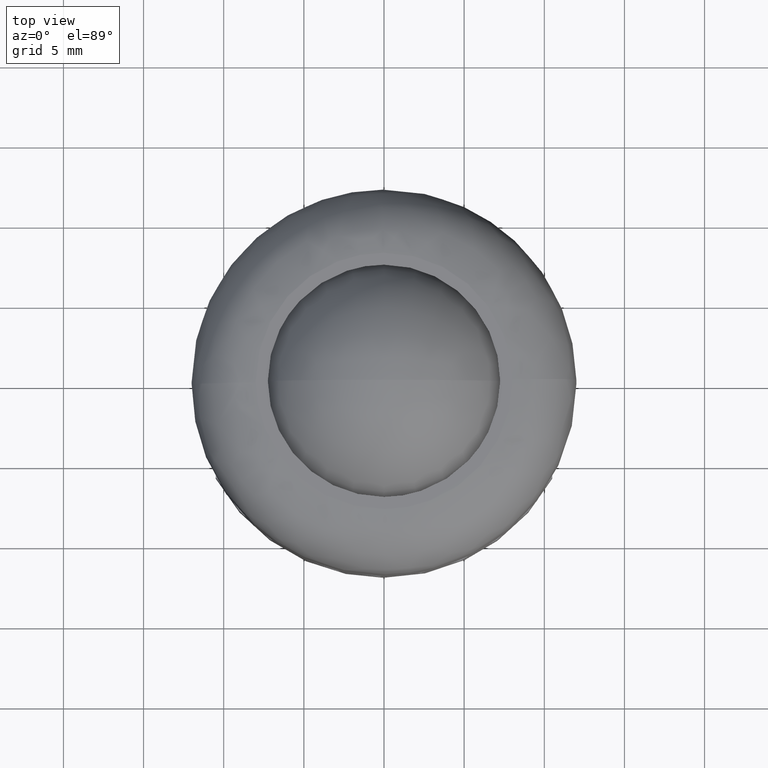
[diagram: clean part render]
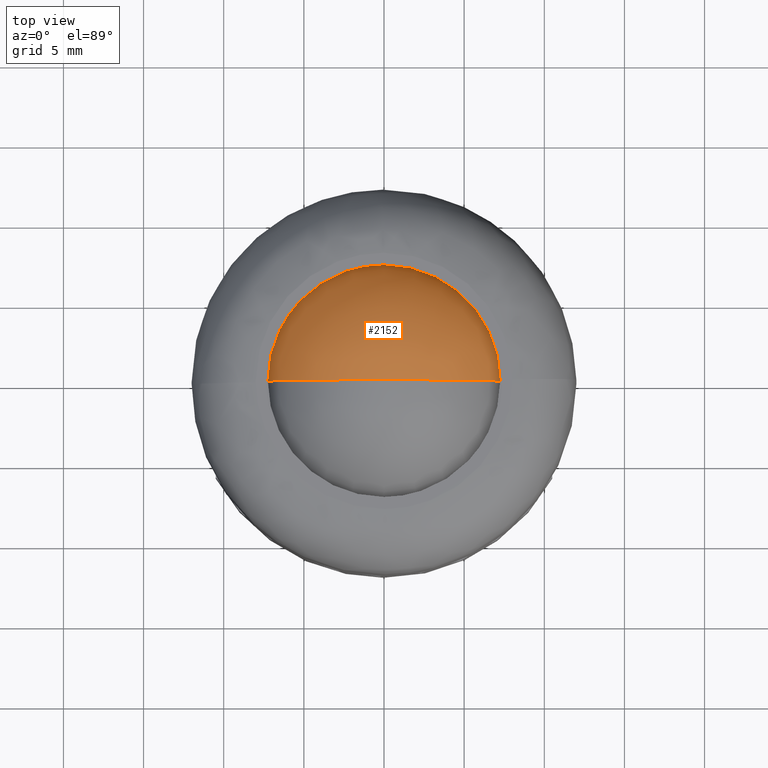
[diagram: same view with one face highlighted and labeled with its STEP entity id]
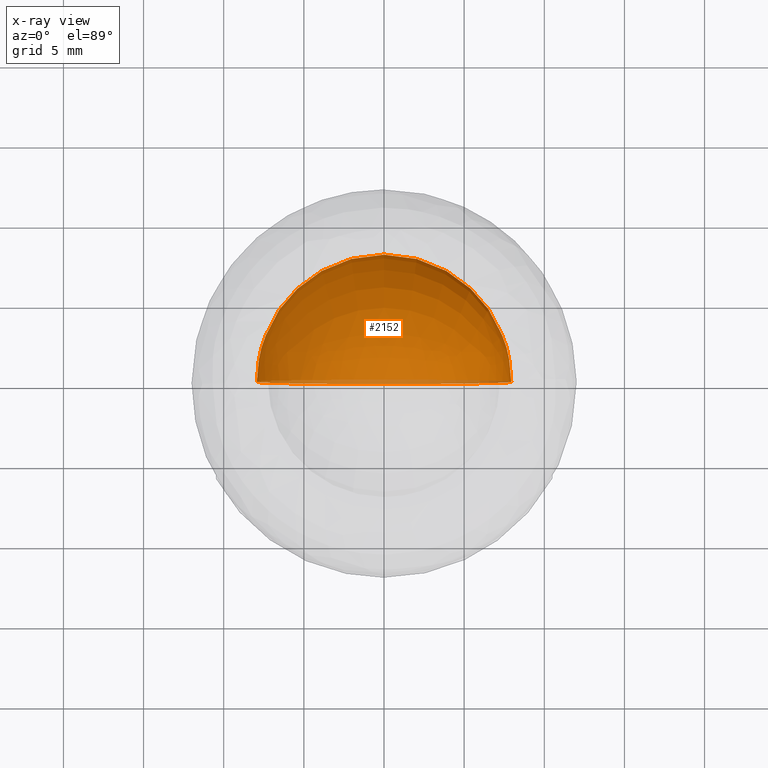
[diagram: x-ray of the same camera — body ghosted, the highlighted face saturated]
A machine part, top view. The second image highlights one B-rep face of the part: STEP entity #2152.
The next image is the same camera in x-ray: the body ghosted, the highlighted face saturated — about 4% of this face is hidden behind the body in this view.
In plain terms, the highlighted face is a freeform B-spline surface patch.
Its self-contained STEP definition (entity closure, byte-faithful):
#2032=CARTESIAN_POINT('',(-5.203075145219109,-2.976562499999999,13.265575145219108));
#2033=CARTESIAN_POINT('',(-4.712218999443721,-1.946933962264152,14.345458665924964));
#2034=CARTESIAN_POINT('',(-1.982123864845375,-0.377976190476191,15.990995459381505));
#2035=CARTESIAN_POINT('',(1.982123864845375,-0.377976190476191,15.990995459381505));
#2036=CARTESIAN_POINT('',(4.712218999443721,-1.946933962264152,14.345458665924964));
#2037=CARTESIAN_POINT('',(5.203075145219109,-2.976562499999999,13.265575145219108));
#2038=CARTESIAN_POINT('',(-6.282958665924962,-1.946933962264152,12.774718999443722));
#2039=CARTESIAN_POINT('',(-5.946371594536124,-0.377976190476191,14.008871594536123));
#2040=CARTESIAN_POINT('',(-2.685458139467927,2.304435483870967,16.118874418403788));
#2041=CARTESIAN_POINT('',(2.685458139467927,2.304435483870967,16.118874418403788));
#2042=CARTESIAN_POINT('',(5.946371594536124,-0.377976190476191,14.008871594536123));
#2043=CARTESIAN_POINT('',(6.282958665924962,-1.946933962264152,12.774718999443722));
#2044=CARTESIAN_POINT('',(-7.928495459381500,-0.377976190476191,10.044623864845377));
#2045=CARTESIAN_POINT('',(-8.056374418403781,2.304435483870967,10.747958139467928));
#2046=CARTESIAN_POINT('',(-4.162460116175287,7.937499999999997,12.224960116175289));
#2047=CARTESIAN_POINT('',(4.162460116175287,7.937499999999997,12.224960116175289));
#2048=CARTESIAN_POINT('',(8.056374418403781,2.304435483870967,10.747958139467928));
#2049=CARTESIAN_POINT('',(7.928495459381500,-0.377976190476191,10.044623864845377));
#2050=CARTESIAN_POINT('',(-7.928495459381500,-0.377976190476191,6.080376135154623));
#2051=CARTESIAN_POINT('',(-8.056374418403781,2.304435483870967,5.377041860532072));
#2052=CARTESIAN_POINT('',(-4.162460116175287,7.937499999999997,3.900039883824713));
#2053=CARTESIAN_POINT('',(4.162460116175287,7.937499999999997,3.900039883824713));
#2054=CARTESIAN_POINT('',(8.056374418403781,2.304435483870967,5.377041860532072));
#2055=CARTESIAN_POINT('',(7.928495459381500,-0.377976190476191,6.080376135154623));
#2056=CARTESIAN_POINT('',(-6.282958665924962,-1.946933962264152,3.350281000556279));
#2057=CARTESIAN_POINT('',(-5.946371594536124,-0.377976190476191,2.116128405463875));
#2058=CARTESIAN_POINT('',(-2.685458139467927,2.304435483870967,0.006125581596217));
#2059=CARTESIAN_POINT('',(2.685458139467927,2.304435483870967,0.006125581596217));
#2060=CARTESIAN_POINT('',(5.946371594536124,-0.377976190476191,2.116128405463875));
#2061=CARTESIAN_POINT('',(6.282958665924962,-1.946933962264152,3.350281000556279));
#2062=CARTESIAN_POINT('',(-5.203075145219109,-2.976562499999999,2.859424854780890));
#2063=CARTESIAN_POINT('',(-4.712218999443721,-1.946933962264152,1.779541334075038));
#2064=CARTESIAN_POINT('',(-1.982123864845375,-0.377976190476191,0.134004540618498));
#2065=CARTESIAN_POINT('',(1.982123864845375,-0.377976190476191,0.134004540618498));
#2066=CARTESIAN_POINT('',(4.712218999443721,-1.946933962264152,1.779541334075038));
#2067=CARTESIAN_POINT('',(5.203075145219109,-2.976562499999999,2.859424854780890));
#2075=(BOUNDED_SURFACE()B_SPLINE_SURFACE(2,2,((#2032,#2038,#2044,#2050,#2056,#2062),(#2033,#2039,#2045,#2051,#2057,#2063),(#2034,#2040,#2046,#2052,#2058,#2064),(#2035,#2041,#2047,#2053,#2059,#2065),(#2036,#2042,#2048,#2054,#2060,#2066),(#2037,#2043,#2049,#2055,#2061,#2067)),.UNSPECIFIED.,.F.,.F.,.U.)B_SPLINE_SURFACE_WITH_KNOTS((3,1,1,1,3),(3,1,1,1,3),(0.0,7.318611193275233,14.637222386550469,21.955833579825700,29.274444773100932),(0.0,7.318611193275234,14.637222386550469,21.955833579825700,29.274444773100939),.UNSPECIFIED.)GEOMETRIC_REPRESENTATION_ITEM()RATIONAL_B_SPLINE_SURFACE(((3.200000000000000,2.650000000000000,2.100000000000000,2.100000000000000,2.650000000000000,3.200000000000000),(2.650000000000000,2.100000000000000,1.550000000000000,1.550000000000000,2.100000000000000,2.650000000000000),(2.100000000000000,1.550000000000000,1.0,1.0,1.550000000000000,2.100000000000000),(2.100000000000000,1.550000000000000,1.0,1.0,1.550000000000000,2.100000000000000),(2.650000000000000,2.100000000000000,1.550000000000000,1.550000000000000,2.100000000000000,2.650000000000000),(3.200000000000000,2.650000000000000,2.100000000000000,2.100000000000000,2.650000000000000,3.200000000000000)))REPRESENTATION_ITEM('')SURFACE());
#2076=CARTESIAN_POINT('',(7.937499999999995,0.0,8.062499715418666));
#2077=VERTEX_POINT('',#2076);
#2078=CARTESIAN_POINT('',(0.0,0.0,0.125000000000000));
#2079=VERTEX_POINT('',#2078);
#2080=CARTESIAN_POINT('',(7.937499999999995,0.0,8.062499715418666));
#2081=CARTESIAN_POINT('',(7.937526429840752,0.0,7.656636668256201));
#2082=CARTESIAN_POINT('',(7.878839184237136,0.0,6.893620309680375));
#2083=CARTESIAN_POINT('',(7.600812862654347,0.0,5.655249724363086));
#2084=CARTESIAN_POINT('',(7.143167409247266,0.0,4.520978951022039));
#2085=CARTESIAN_POINT('',(6.500862322941942,0.0,3.464210535127037));
#2086=CARTESIAN_POINT('',(5.873411171348401,0.0,2.694860776072514));
#2087=CARTESIAN_POINT('',(5.101020664901105,0.0,1.950374057367405));
#2088=CARTESIAN_POINT('',(4.222373077824977,0.0,1.302878974162642));
#2089=CARTESIAN_POINT('',(3.239781104060269,0.0,0.793102905739649));
#2090=CARTESIAN_POINT('',(2.217663020156920,0.0,0.416728675069624));
#2091=CARTESIAN_POINT('',(1.168887880635739,0.0,0.181217954856186));
#2092=CARTESIAN_POINT('',(0.373391559620912,0.0,0.124986498605539));
#2093=CARTESIAN_POINT('',(0.0,0.0,0.125000000000000));
#2094=B_SPLINE_CURVE_WITH_KNOTS('',3,(#2080,#2081,#2082,#2083,#2084,#2085,#2086,#2087,#2088,#2089,#2090,#2091,#2092,#2093),.UNSPECIFIED.,.F.,.U.,(4,1,1,1,1,1,1,1,1,1,1,4),(0.000000032738585,1.217586002176585,2.289084432942797,3.798911578408381,4.870408895761898,5.990590187463901,6.769833340091660,8.084854152672790,9.253753082750126,10.081726149205799,11.348038189644511,12.468215242520900),.UNSPECIFIED.);
#2095=EDGE_CURVE('',#2077,#2079,#2094,.T.);
#2096=ORIENTED_EDGE('',*,*,#2095,.T.);
#2097=CARTESIAN_POINT('',(-7.937499999999995,0.0,8.062499715418666));
#2098=VERTEX_POINT('',#2097);
#2099=CARTESIAN_POINT('',(-7.937499999999995,0.0,8.062499715418666));
#2100=CARTESIAN_POINT('',(-7.937526429840752,0.0,7.656636668256201));
#2101=CARTESIAN_POINT('',(-7.878839184237136,0.0,6.893620309680375));
#2102=CARTESIAN_POINT('',(-7.600812862654347,0.0,5.655249724363086));
#2103=CARTESIAN_POINT('',(-7.143167409247266,0.0,4.520978951022039));
#2104=CARTESIAN_POINT('',(-6.500862322941942,0.0,3.464210535127037));
#2105=CARTESIAN_POINT('',(-5.873411171348401,0.0,2.694860776072514));
#2106=CARTESIAN_POINT('',(-5.101020664901105,0.0,1.950374057367405));
#2107=CARTESIAN_POINT('',(-4.222373077824977,0.0,1.302878974162642));
#2108=CARTESIAN_POINT('',(-3.239781104060269,0.0,0.793102905739649));
#2109=CARTESIAN_POINT('',(-2.217663020156920,0.0,0.416728675069624));
#2110=CARTESIAN_POINT('',(-1.168887880635739,0.0,0.181217954856186));
#2111=CARTESIAN_POINT('',(-0.373391559620912,0.0,0.124986498605539));
#2112=CARTESIAN_POINT('',(0.0,0.0,0.125000000000000));
#2113=B_SPLINE_CURVE_WITH_KNOTS('',3,(#2099,#2100,#2101,#2102,#2103,#2104,#2105,#2106,#2107,#2108,#2109,#2110,#2111,#2112),.UNSPECIFIED.,.F.,.U.,(4,1,1,1,1,1,1,1,1,1,1,4),(0.000000032738585,1.217586002176585,2.289084432942797,3.798911578408381,4.870408895761898,5.990590187463901,6.769833340091660,8.084854152672790,9.253753082750126,10.081726149205799,11.348038189644511,12.468215242520900),.UNSPECIFIED.);
#2114=EDGE_CURVE('',#2098,#2079,#2113,.T.);
#2115=ORIENTED_EDGE('',*,*,#2114,.F.);
#2116=CARTESIAN_POINT('',(0.0,0.0,16.0));
#2117=VERTEX_POINT('',#2116);
#2118=CARTESIAN_POINT('',(0.0,0.0,16.0));
#2119=CARTESIAN_POINT('',(-0.681868174005265,0.0,16.000176730155641));
#2120=CARTESIAN_POINT('',(-1.834434392075570,0.0,15.850551650763270));
#2121=CARTESIAN_POINT('',(-3.183390182732144,0.0,15.363114386517770));
#2122=CARTESIAN_POINT('',(-4.174268047028637,0.0,14.837363934207589));
#2123=CARTESIAN_POINT('',(-5.054384347019138,0.0,14.221577290385531));
#2124=CARTESIAN_POINT('',(-5.868254362250860,0.0,13.446698806482241));
#2125=CARTESIAN_POINT('',(-6.604488033672531,0.0,12.515143016114550));
#2126=CARTESIAN_POINT('',(-7.118550296321462,0.0,11.626876080904079));
#2127=CARTESIAN_POINT('',(-7.572640736530427,0.0,10.530629133518520));
#2128=CARTESIAN_POINT('',(-7.864843496030735,0.0,9.393739386047132));
#2129=CARTESIAN_POINT('',(-7.937521676862854,0.0,8.484596402267568));
#2130=CARTESIAN_POINT('',(-7.937499999999995,0.0,8.062499715418666));
#2131=B_SPLINE_CURVE_WITH_KNOTS('',3,(#2118,#2119,#2120,#2121,#2122,#2123,#2124,#2125,#2126,#2127,#2128,#2129,#2130),.UNSPECIFIED.,.F.,.U.,(4,1,1,1,1,1,1,1,1,1,4),(0.000000032712707,2.045561479510239,3.457982931401439,4.285957043250505,5.406142436141937,6.672427645671631,7.646520328403697,8.961527161658276,9.740796197932735,11.201921331977429,12.468215563310901),.UNSPECIFIED.);
#2132=EDGE_CURVE('',#2117,#2098,#2131,.T.);
#2133=ORIENTED_EDGE('',*,*,#2132,.F.);
#2134=CARTESIAN_POINT('',(0.0,0.0,16.0));
#2135=CARTESIAN_POINT('',(0.681868174005265,0.0,16.000176730155641));
#2136=CARTESIAN_POINT('',(1.834434392075570,0.0,15.850551650763270));
#2137=CARTESIAN_POINT('',(3.183390182732144,0.0,15.363114386517770));
#2138=CARTESIAN_POINT('',(4.174268047028637,0.0,14.837363934207589));
#2139=CARTESIAN_POINT('',(5.054384347019138,0.0,14.221577290385531));
#2140=CARTESIAN_POINT('',(5.868254362250860,0.0,13.446698806482241));
#2141=CARTESIAN_POINT('',(6.604488033672531,0.0,12.515143016114550));
#2142=CARTESIAN_POINT('',(7.118550296321462,0.0,11.626876080904079));
#2143=CARTESIAN_POINT('',(7.572640736530427,0.0,10.530629133518520));
#2144=CARTESIAN_POINT('',(7.864843496030735,0.0,9.393739386047132));
#2145=CARTESIAN_POINT('',(7.937521676862854,0.0,8.484596402267568));
#2146=CARTESIAN_POINT('',(7.937499999999995,0.0,8.062499715418666));
#2147=B_SPLINE_CURVE_WITH_KNOTS('',3,(#2134,#2135,#2136,#2137,#2138,#2139,#2140,#2141,#2142,#2143,#2144,#2145,#2146),.UNSPECIFIED.,.F.,.U.,(4,1,1,1,1,1,1,1,1,1,4),(0.000000032712707,2.045561479510239,3.457982931401439,4.285957043250505,5.406142436141937,6.672427645671631,7.646520328403697,8.961527161658276,9.740796197932735,11.201921331977429,12.468215563310901),.UNSPECIFIED.);
#2148=EDGE_CURVE('',#2117,#2077,#2147,.T.);
#2149=ORIENTED_EDGE('',*,*,#2148,.T.);
#2150=EDGE_LOOP('',(#2096,#2115,#2133,#2149));
#2151=FACE_OUTER_BOUND('',#2150,.T.);
#2152=ADVANCED_FACE('',(#2151),#2075,.T.);